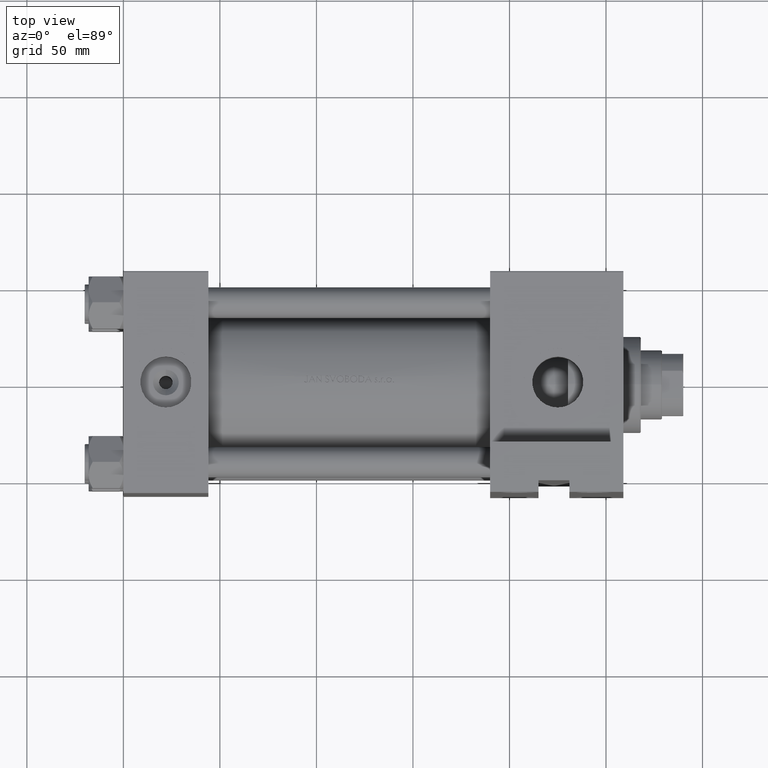
[diagram: clean part render]
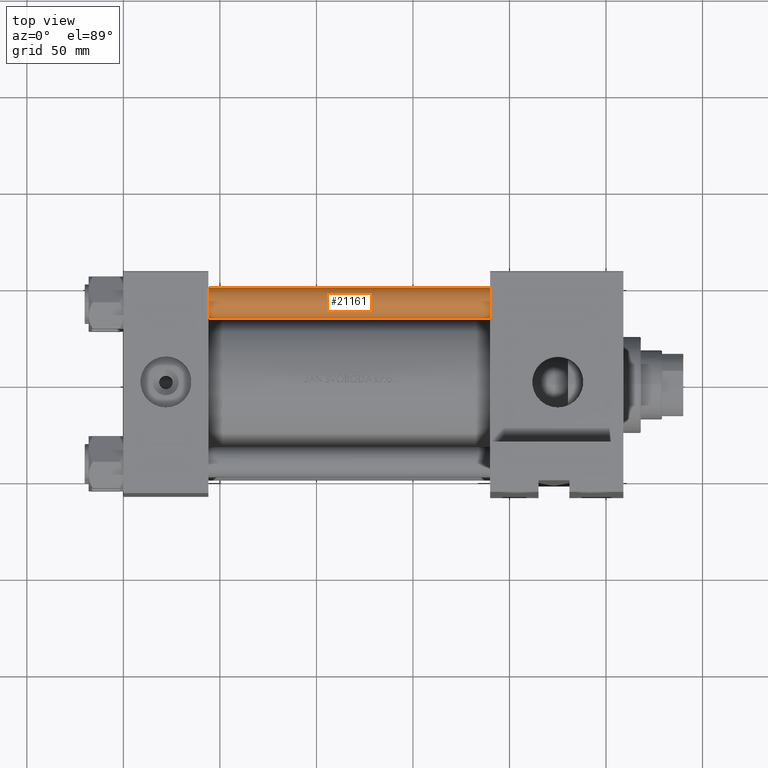
[diagram: same view with one face highlighted and labeled with its STEP entity id]
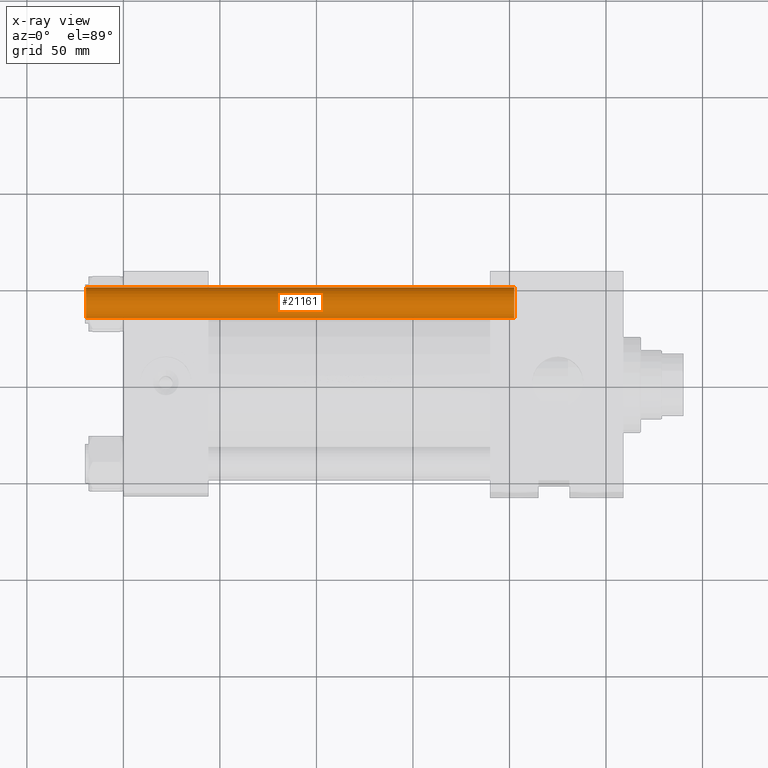
[diagram: x-ray of the same camera — body ghosted, the highlighted face saturated]
A machine part, top view. The second image highlights one B-rep face of the part: STEP entity #21161.
The next image is the same camera in x-ray: the body ghosted, the highlighted face saturated — about 0% of this face is hidden behind the body in this view.
In plain terms, the highlighted cylindrical surface (edge-blend (fillet) strip) has radius 8 mm, axis along (1, -0, 0).
Its self-contained STEP definition (entity closure, byte-faithful):
#258 = LINE ( 'NONE', #11217, #35602 ) ;
#1256 = CARTESIAN_POINT ( 'NONE',  ( 8.000000000000000000, 9.797174393178823685E-16, 223.0000000000000000 ) ) ;
#2271 = EDGE_CURVE ( 'NONE', #31650, #19370, #30250, .T. ) ;
#3595 = DIRECTION ( 'NONE',  ( -0.000000000000000000, -0.000000000000000000, 1.000000000000000000 ) ) ;
#4065 = DIRECTION ( 'NONE',  ( 0.000000000000000000, 0.000000000000000000, -1.000000000000000000 ) ) ;
#6553 = VECTOR ( 'NONE', #45791, 1000.000000000000000 ) ;
#6775 = CARTESIAN_POINT ( 'NONE',  ( 0.000000000000000000, 0.000000000000000000, 0.5000000000001669775 ) ) ;
#7279 = EDGE_LOOP ( 'NONE', ( #8275, #34336, #47118, #46468 ) ) ;
#7723 = DIRECTION ( 'NONE',  ( 1.000000000000000000, 0.000000000000000000, 0.000000000000000000 ) ) ;
#8275 = ORIENTED_EDGE ( 'NONE', *, *, #2271, .F. ) ;
#9204 = CARTESIAN_POINT ( 'NONE',  ( 8.000000000000000000, 9.797174393178823685E-16, 0.5000000000001669775 ) ) ;
#9461 = EDGE_CURVE ( 'NONE', #31650, #29899, #41757, .T. ) ;
#11217 = CARTESIAN_POINT ( 'NONE',  ( -8.000000000000000000, 0.000000000000000000, 223.0000000000000000 ) ) ;
#14275 = EDGE_CURVE ( 'NONE', #29899, #40493, #258, .T. ) ;
#15026 = CARTESIAN_POINT ( 'NONE',  ( 0.000000000000000000, 0.000000000000000000, 222.5000000000001137 ) ) ;
#15101 = DIRECTION ( 'NONE',  ( -0.000000000000000000, -0.000000000000000000, -1.000000000000000000 ) ) ;
#15263 = CARTESIAN_POINT ( 'NONE',  ( -8.000000000000000000, 0.000000000000000000, 0.5000000000001669775 ) ) ;
#15703 = CARTESIAN_POINT ( 'NONE',  ( 8.000000000000000000, 9.797174393178823685E-16, 222.5000000000001137 ) ) ;
#16203 = CARTESIAN_POINT ( 'NONE',  ( -8.000000000000000000, 0.000000000000000000, 222.5000000000001137 ) ) ;
#16686 = DIRECTION ( 'NONE',  ( -0.000000000000000000, -0.000000000000000000, -1.000000000000000000 ) ) ;
#16933 = CYLINDRICAL_SURFACE ( 'NONE', #26779, 8.000000000000000000 ) ;
#17405 = FACE_OUTER_BOUND ( 'NONE', #7279, .T. ) ;
#19370 = VERTEX_POINT ( 'NONE', #9204 ) ;
#20790 = AXIS2_PLACEMENT_3D ( 'NONE', #15026, #4065, #7723 ) ;
#21161 = ADVANCED_FACE ( 'NONE', ( #17405 ), #16933, .T. ) ;
#21870 = DIRECTION ( 'NONE',  ( 1.000000000000000000, 0.000000000000000000, 0.000000000000000000 ) ) ;
#24107 = CIRCLE ( 'NONE', #38768, 8.000000000000000000 ) ;
#26779 = AXIS2_PLACEMENT_3D ( 'NONE', #39316, #16686, #28373 ) ;
#28373 = DIRECTION ( 'NONE',  ( -1.000000000000000000, 0.000000000000000000, 0.000000000000000000 ) ) ;
#29899 = VERTEX_POINT ( 'NONE', #16203 ) ;
#30250 = LINE ( 'NONE', #1256, #6553 ) ;
#31650 = VERTEX_POINT ( 'NONE', #15703 ) ;
#34336 = ORIENTED_EDGE ( 'NONE', *, *, #9461, .T. ) ;
#34837 = EDGE_CURVE ( 'NONE', #40493, #19370, #24107, .T. ) ;
#35602 = VECTOR ( 'NONE', #15101, 1000.000000000000000 ) ;
#38768 = AXIS2_PLACEMENT_3D ( 'NONE', #6775, #3595, #21870 ) ;
#39316 = CARTESIAN_POINT ( 'NONE',  ( 0.000000000000000000, 0.000000000000000000, 223.0000000000000000 ) ) ;
#40493 = VERTEX_POINT ( 'NONE', #15263 ) ;
#41757 = CIRCLE ( 'NONE', #20790, 8.000000000000000000 ) ;
#45791 = DIRECTION ( 'NONE',  ( -0.000000000000000000, -0.000000000000000000, -1.000000000000000000 ) ) ;
#46468 = ORIENTED_EDGE ( 'NONE', *, *, #34837, .T. ) ;
#47118 = ORIENTED_EDGE ( 'NONE', *, *, #14275, .T. ) ;